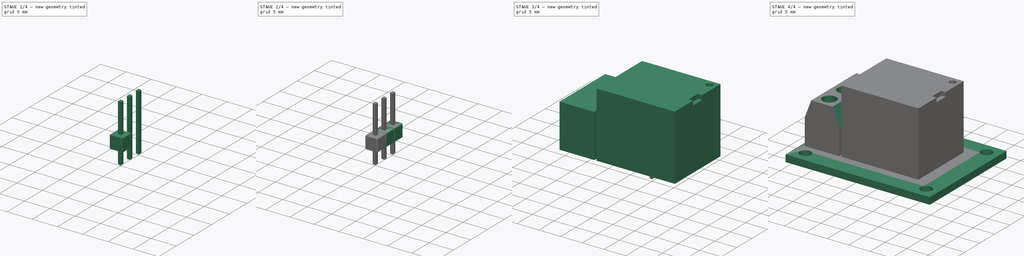
[diagram: build sequence overview — one tinted view per stage of 4, left to right]
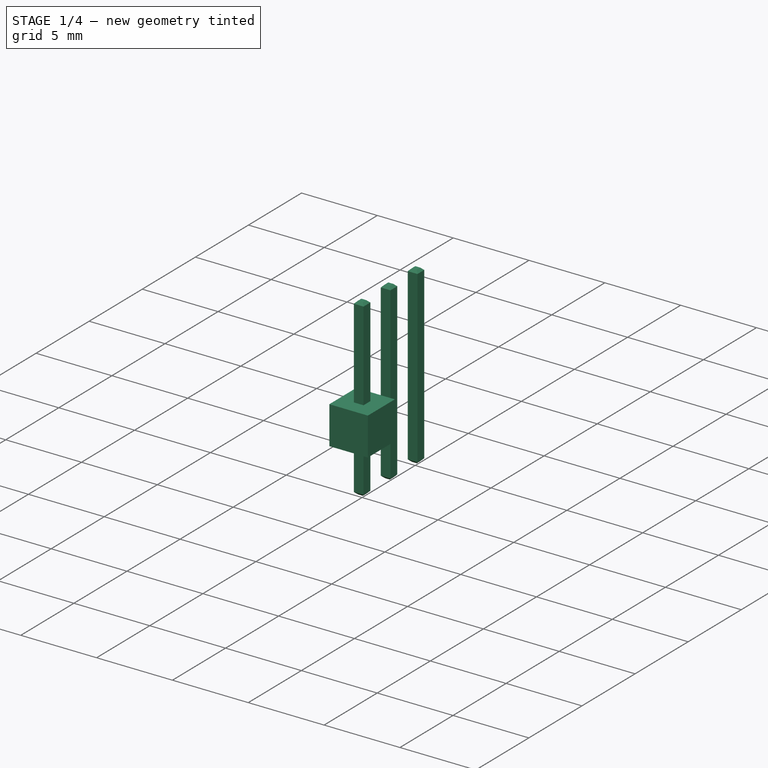
[diagram: stage 1 of 4 — iso view after this stage's code; geometry added in this stage tinted green]
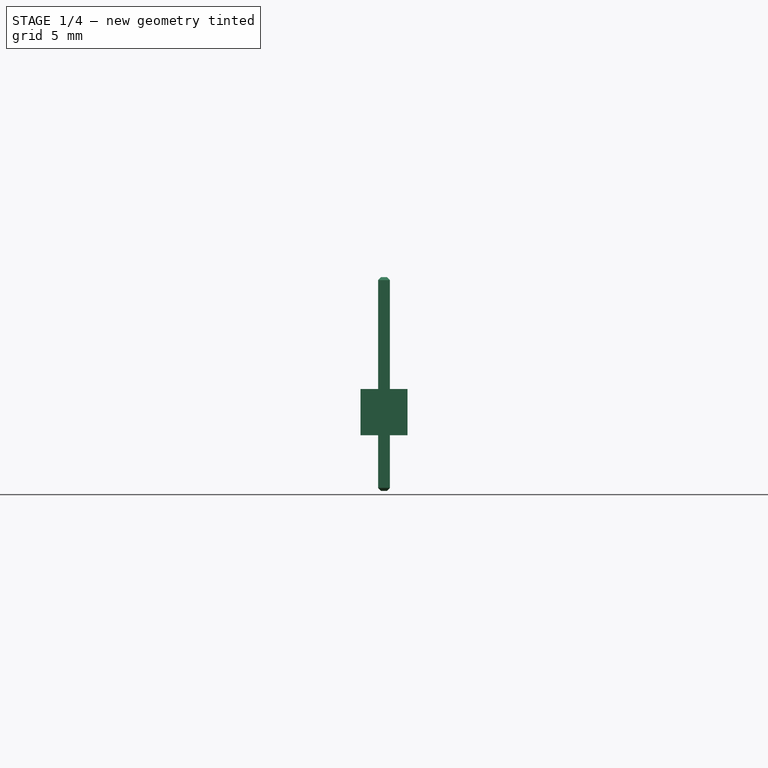
[diagram: stage 1 of 4 — front view after this stage's code; geometry added in this stage tinted green]
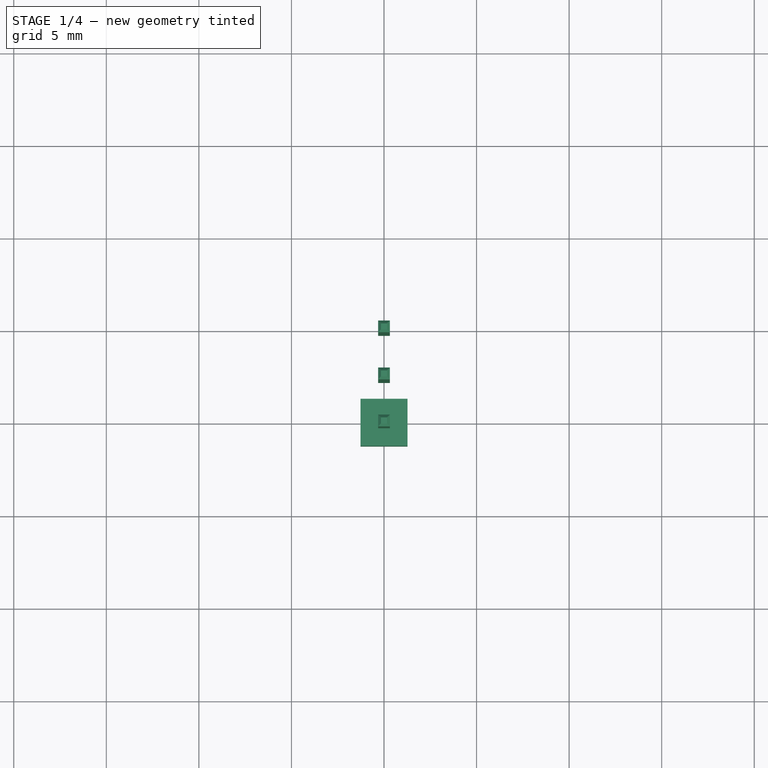
[diagram: stage 1 of 4 — top view after this stage's code; geometry added in this stage tinted green]
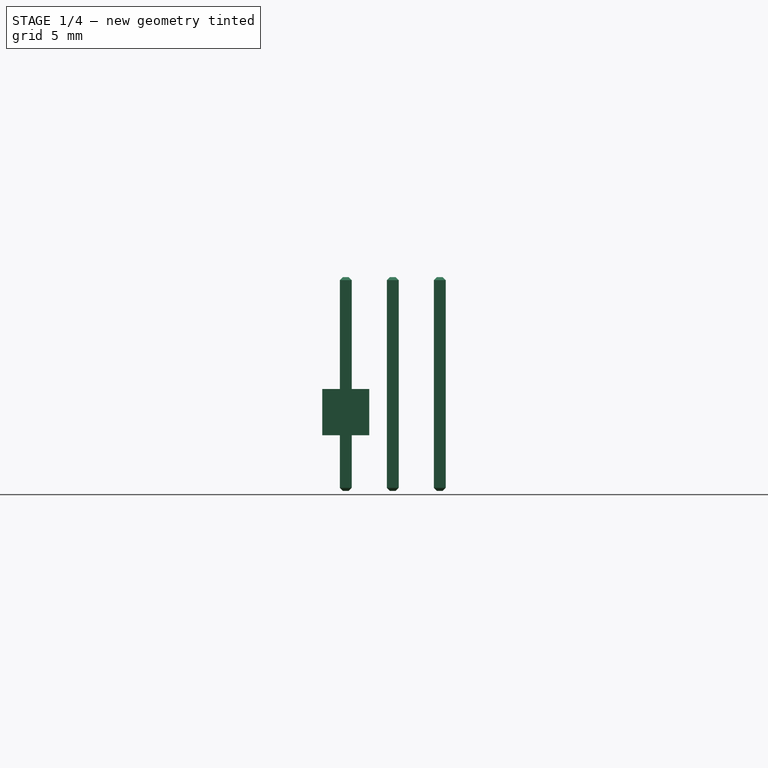
[diagram: stage 1 of 4 — right view after this stage's code; geometry added in this stage tinted green]
FCSTD DOCUMENT  (FreeCAD 0.18R4 (GitTag))
Label: HW-482
License: CreativeCommons Attribution-NonCommercial
LicenseURL: http://creativecommons.org/licenses/by-nc/4.0/
objects: Sketcher::SketchObject×9, PartDesign::Pad×5, PartDesign::Body×5, PartDesign::Pocket×4, PartDesign::Chamfer×3, PartDesign::ShapeBinder×2, Part::FeaturePython×2, App::Part×2
note: 39 computed .brp shape members not serialized (recipe doc carries the construction recipe); baked Part::Feature solids carry a one-line shape summary decoded from their .brp

FEATURE [PartDesign::Body] Body002  label="HW-482 Relais Block"
  Group = -> [CopyPad001,Sketch005,Pad002,Sketch006,Pocket003]
  Origin = -> Origin003
  Tip = -> Pocket003
FEATURE [Sketcher::SketchObject] Sketch207
  MapMode = 5
  Placement = pos=(0,0,0) rot=(1,0,0;1.5708rad)
  Support = -> [XZ_Plane050]
  sketch-geometry (4):
    g0: LineSegment StartX=-0.32 StartY=-3 StartZ=0 EndX=0.32 EndY=-3 EndZ=0
    g1: LineSegment StartX=0.32 StartY=-3 StartZ=0 EndX=0.32 EndY=8.54 EndZ=0
    g2: LineSegment StartX=0.32 StartY=8.54 StartZ=0 EndX=-0.32 EndY=8.54 EndZ=0
    g3: LineSegment StartX=-0.32 StartY=8.54 StartZ=0 EndX=-0.32 EndY=-3 EndZ=0
  constraints (11):
    c: Coincident(g0,g1)
    c: Coincident(g1,g2)
    c: Coincident(g2,g3)
    c: Coincident(g3,g0)
    c: Horizontal(g0)
    c: Vertical(g1)
    c: Vertical(g3)
    c: DistanceY(g-1,g1) = 8.54
    c: DistanceY(g0,g-1) = 3
    c: Symmetric(g2,g1,g-2)
    c: DistanceX(g2,g2) = 0.64
FEATURE [Sketcher::SketchObject] Sketch208
  MapMode = 5
  Support = -> [XY_Plane052]
  sketch-geometry (4):
    g0: LineSegment StartX=-1.27 StartY=-1.27 StartZ=0 EndX=1.27 EndY=-1.27 EndZ=0
    g1: LineSegment StartX=1.27 StartY=-1.27 StartZ=0 EndX=1.27 EndY=1.27 EndZ=0
    g2: LineSegment StartX=1.27 StartY=1.27 StartZ=0 EndX=-1.27 EndY=1.27 EndZ=0
    g3: LineSegment StartX=-1.27 StartY=1.27 StartZ=0 EndX=-1.27 EndY=-1.27 EndZ=0
  constraints (10):
    c: Coincident(g0,g1)
    c: Coincident(g1,g2)
    c: Coincident(g2,g3)
    c: Coincident(g3,g0)
    c: Horizontal(g0)
    c: Vertical(g3)
    c: Symmetric(g1,g2,g-2)
    c: Symmetric(g0,g1,g-1)
    c: Equal(g3,g2)
    c: DistanceX(g2,g2) = 2.54
FEATURE [PartDesign::Pad] Pad062
  Length = 0.32
  Length2 = 0.32
  Placement = pos=(0,0,0) rot=(1,0,0;1.5708rad)
  Profile = -> Sketch207
  Type = 4
FEATURE [PartDesign::Chamfer] Chamfer012
  Base = -> Pad062 [Face3,Face1]
  BaseFeature = -> Pad062
  Placement = pos=(0,0,0) rot=(1,0,0;1.5708rad)
  Size = 0.16
FEATURE [PartDesign::Body] Body034  label="Pin Header Pin001"
  Group = -> [Sketch207,Pad062,Chamfer012]
  Origin = -> Origin050
  Tip = -> Chamfer012
FEATURE [PartDesign::Pad] Pad063
  Length = 2.5
  Length2 = 100
  Profile = -> Sketch208
  Type = 0
FEATURE [Part::FeaturePython] Array001  # Draft array (typed FeaturePython)
  Angle = 360
  ArrayType = 0
  Axis = (0,0,1)
  Base = -> Body034
  Center = (0,0,0)
  Fuse = false
  IntervalAxis = (0,0,0)
  IntervalX = (1,0,0)
  IntervalY = (0,2.54,0)
  IntervalZ = (0,0,1)
  NumberPolar = 1
  NumberX = 1
  NumberY = 3
  NumberZ = 1
FEATURE [App::Part] Part010  label="Pin Header001"
  Group = -> [Body035,Body034,Array,Array001]
  Origin = -> Origin051
  Placement = pos=(14,-0.08,1.6) rot=(0,0,1;0rad)
FEATURE [App::Part] Part  label="HW-482 Relais"
  Group = -> [Body,Body001,Body002,Part010]
  Origin = -> Origin
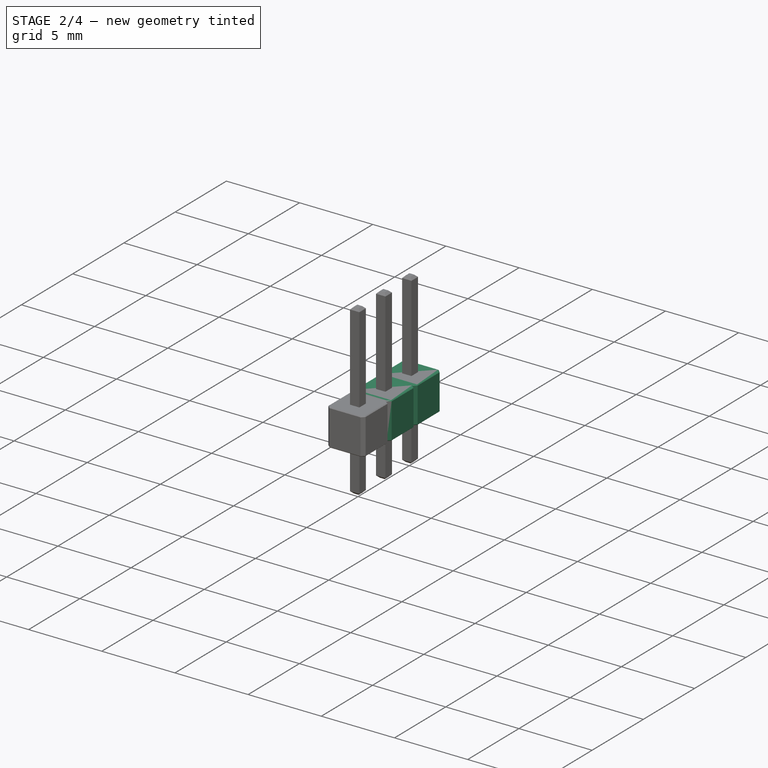
[diagram: stage 2 of 4 — iso view after this stage's code; geometry added in this stage tinted green]
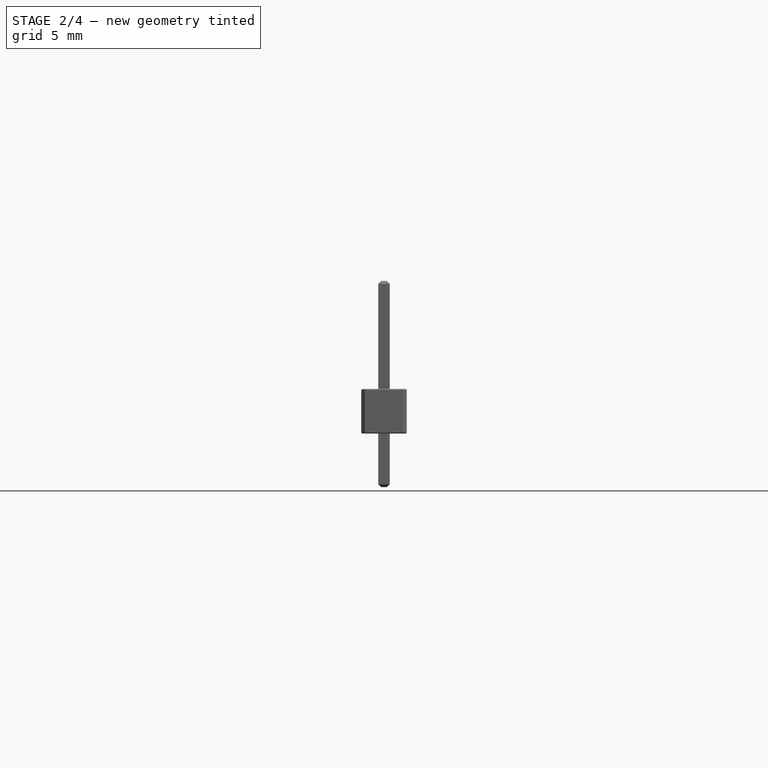
[diagram: stage 2 of 4 — front view after this stage's code; geometry added in this stage tinted green]
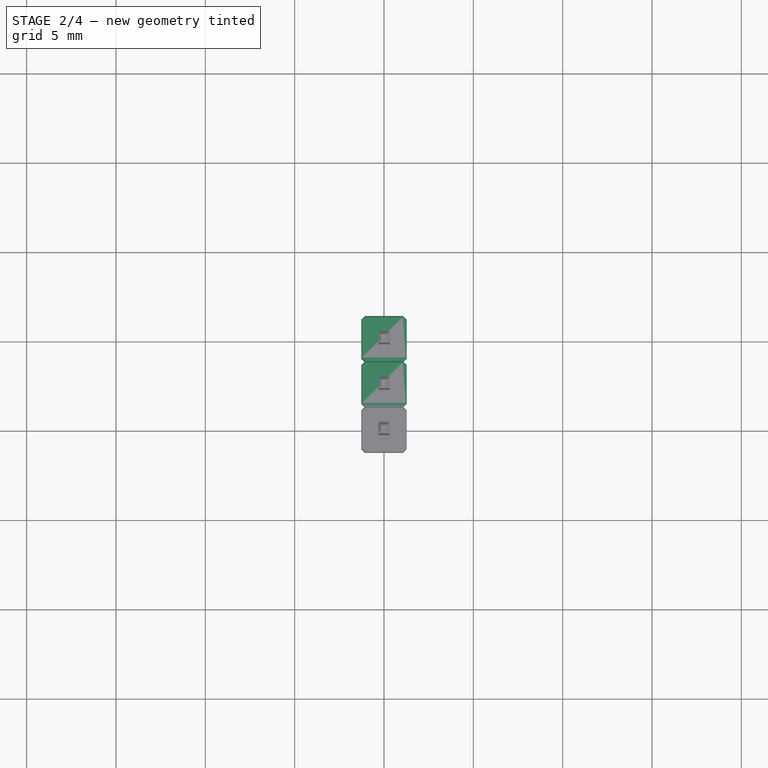
[diagram: stage 2 of 4 — top view after this stage's code; geometry added in this stage tinted green]
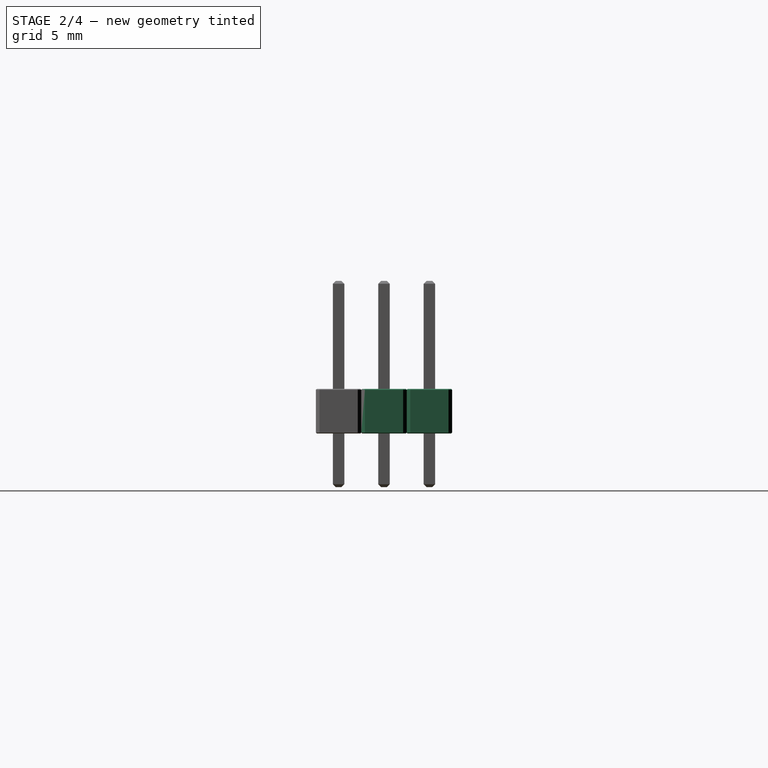
[diagram: stage 2 of 4 — right view after this stage's code; geometry added in this stage tinted green]
FEATURE [PartDesign::Chamfer] Chamfer014
  Base = -> Pad063 [Edge2,Edge1,Edge5,Edge8]
  BaseFeature = -> Pad063
  Size = 0.2
FEATURE [PartDesign::Chamfer] Chamfer013
  Base = -> Chamfer014 [Face5,Face2]
  BaseFeature = -> Chamfer014
  Size = 0.05
FEATURE [PartDesign::Body] Body035  label="Pin Header Block001"
  Group = -> [Sketch208,Pad063,Chamfer014,Chamfer013]
  Origin = -> Origin052
  Tip = -> Chamfer013
FEATURE [Part::FeaturePython] Array  # Draft array (typed FeaturePython)
  Angle = 360
  ArrayType = 0
  Axis = (0,0,1)
  Base = -> Body035
  Center = (0,0,0)
  Fuse = false
  IntervalAxis = (0,0,0)
  IntervalX = (1,0,0)
  IntervalY = (0,2.54,0)
  IntervalZ = (0,0,1)
  NumberPolar = 1
  NumberX = 1
  NumberY = 3
  NumberZ = 1
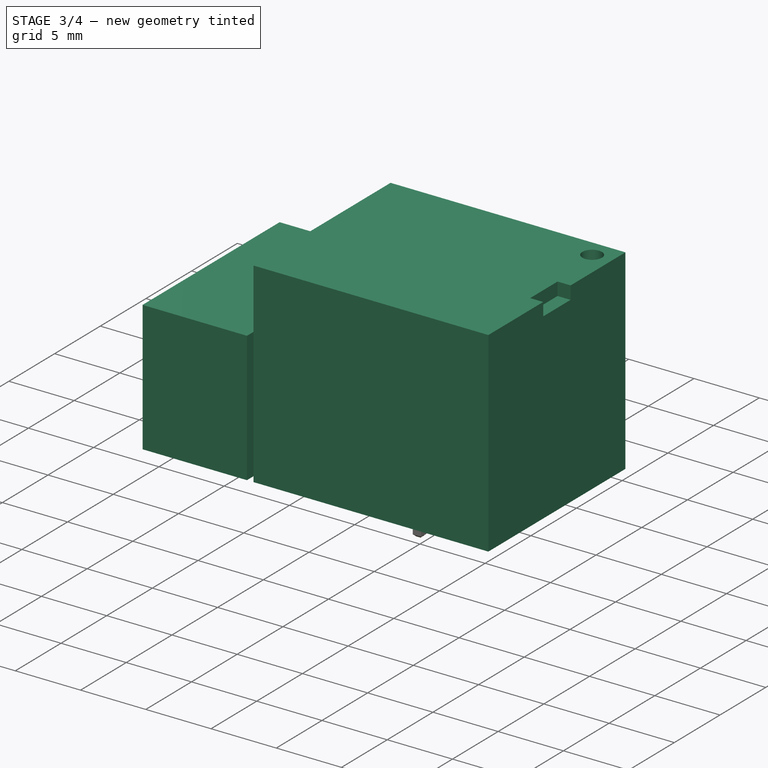
[diagram: stage 3 of 4 — iso view after this stage's code; geometry added in this stage tinted green]
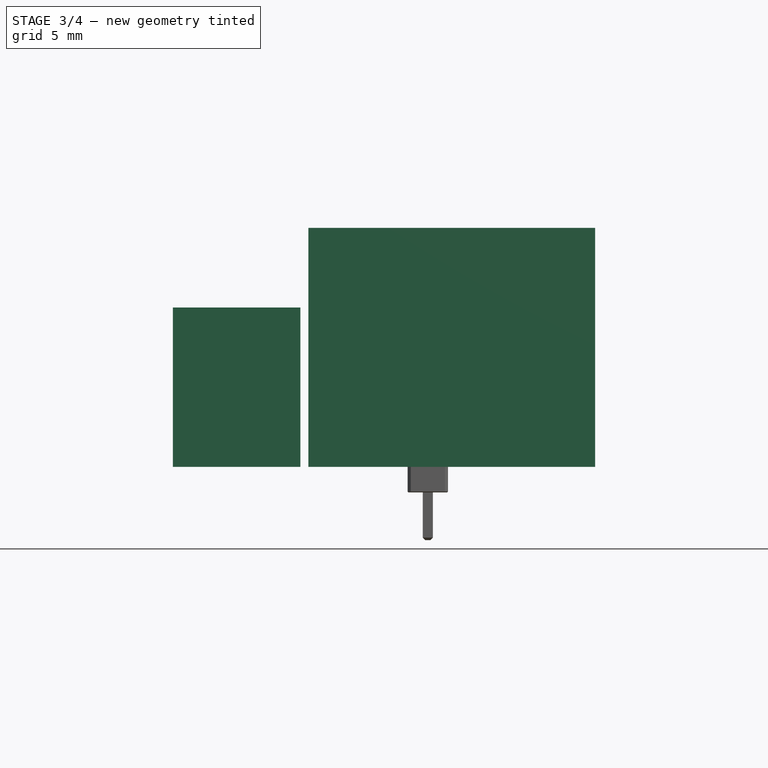
[diagram: stage 3 of 4 — front view after this stage's code; geometry added in this stage tinted green]
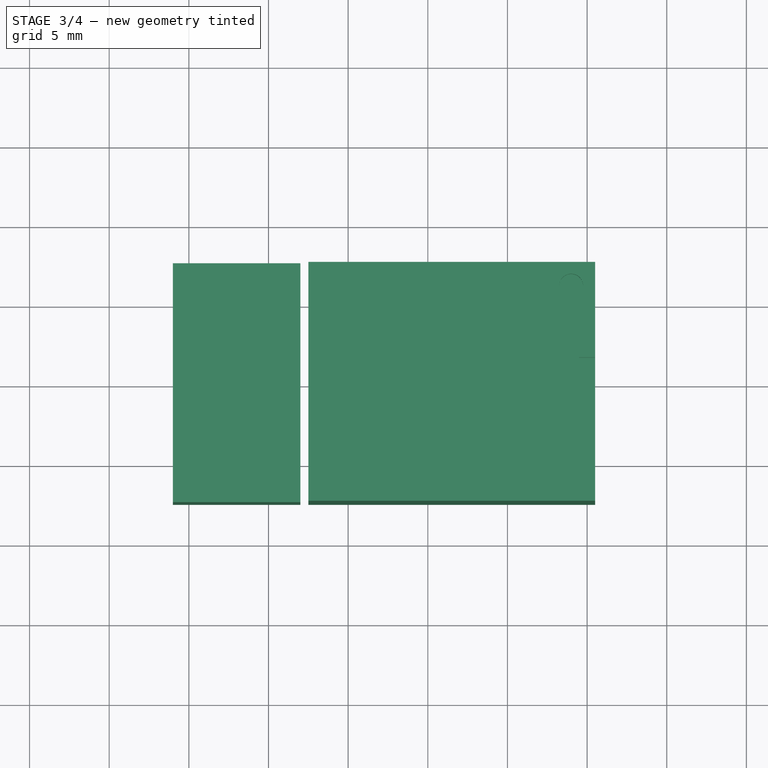
[diagram: stage 3 of 4 — top view after this stage's code; geometry added in this stage tinted green]
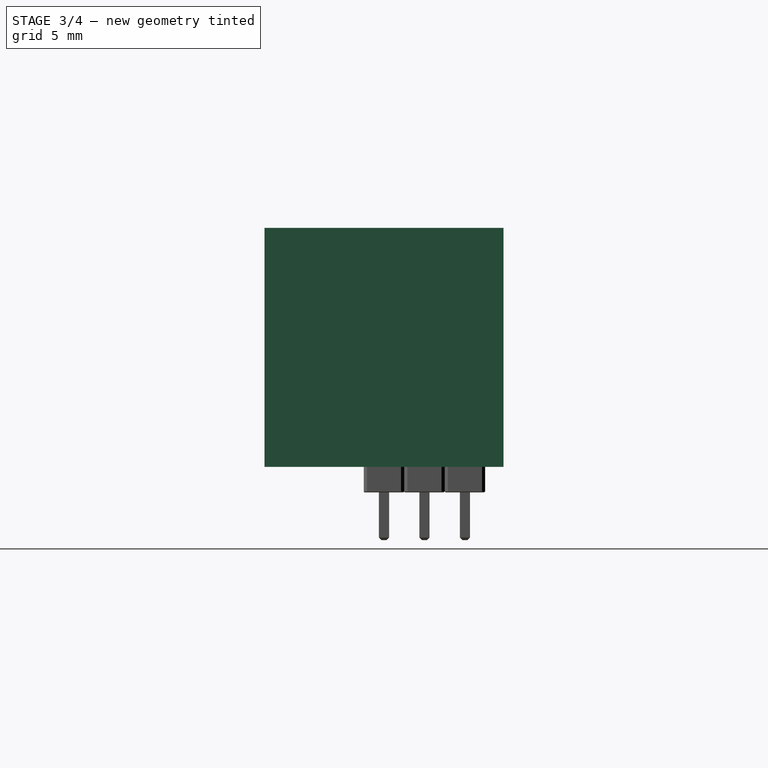
[diagram: stage 3 of 4 — right view after this stage's code; geometry added in this stage tinted green]
FEATURE [PartDesign::Body] Body  label="HW-482 Relais PCB"
  Group = -> [Sketch,Pad]
  Origin = -> Origin001
  Tip = -> Pad
FEATURE [PartDesign::ShapeBinder] CopyPad
  Placement = pos=(0,0,1.6) rot=(0,0,1;0rad)
  TraceSupport = false
FEATURE [Sketcher::SketchObject] Sketch001
  MapMode = 5
  Placement = pos=(0,0,1.6) rot=(0,0,1;0rad)
  Support = -> [CopyPad]
  sketch-geometry (4):
    g0: LineSegment StartX=-16 StartY=-7.5 StartZ=0 EndX=-8 EndY=-7.5 EndZ=0
    g1: LineSegment StartX=-8 StartY=-7.5 StartZ=0 EndX=-8 EndY=7.5 EndZ=0
    g2: LineSegment StartX=-8 StartY=7.5 StartZ=0 EndX=-16 EndY=7.5 EndZ=0
    g3: LineSegment StartX=-16 StartY=7.5 StartZ=0 EndX=-16 EndY=-7.5 EndZ=0
  constraints (11):
    c: Coincident(g0,g1)
    c: Coincident(g1,g2)
    c: Coincident(g2,g3)
    c: Coincident(g3,g0)
    c: Horizontal(g0)
    c: Horizontal(g2)
    c: Vertical(g1)
    c: DistanceX(g2,g2) = 8
    c: DistanceY(g3,g3) = 15
    c: Symmetric(g2,g0,g-1)
    c: DistanceX(g2,g-1) = 16
FEATURE [PartDesign::Pad] Pad001
  Length = 10
  Length2 = 100
  Placement = pos=(0,0,1.6) rot=(0,0,1;0rad)
  Profile = -> Sketch001
  Type = 0
FEATURE [PartDesign::Body] Body001  label="HW-482 Terminal Block"
  Group = -> [CopyPad,Sketch001,Pad001,Sketch002,Pocket,Sketch003,Pocket001,Sketch004,Pocket002]
  Origin = -> Origin002
  Tip = -> Pocket002
FEATURE [PartDesign::ShapeBinder] CopyPad001
  Placement = pos=(0,0,1.6) rot=(0,0,1;0rad)
  TraceSupport = false
FEATURE [Sketcher::SketchObject] Sketch005
  MapMode = 5
  Placement = pos=(0,0,1.6) rot=(0,0,1;0rad)
  Support = -> [CopyPad001]
  sketch-geometry (4):
    g0: LineSegment StartX=-7.5 StartY=7.5 StartZ=0 EndX=10.5 EndY=7.5 EndZ=0
    g1: LineSegment StartX=10.5 StartY=7.5 StartZ=0 EndX=10.5 EndY=-7.5 EndZ=0
    g2: LineSegment StartX=10.5 StartY=-7.5 StartZ=0 EndX=-7.5 EndY=-7.5 EndZ=0
    g3: LineSegment StartX=-7.5 StartY=-7.5 StartZ=0 EndX=-7.5 EndY=7.5 EndZ=0
  constraints (11):
    c: Coincident(g0,g1)
    c: Coincident(g1,g2)
    c: Coincident(g2,g3)
    c: Coincident(g3,g0)
    c: Horizontal(g0)
    c: Horizontal(g2)
    c: Vertical(g3)
    c: DistanceY(g1,g1) = 15
    c: Symmetric(g0,g1,g-1)
    c: DistanceX(g0,g-1) = 7.5
    c: DistanceX(g0,g0) = 18
FEATURE [PartDesign::Pad] Pad002
  Length = 15
  Length2 = 100
  Placement = pos=(0,0,1.6) rot=(0,0,1;0rad)
  Profile = -> Sketch005
  Type = 0
FEATURE [Sketcher::SketchObject] Sketch006
  ExternalGeometry = -> [Pad002]
  MapMode = 5
  Placement = pos=(0,0,16.6) rot=(0,0,1;0rad)
  Support = -> [Pad002]
  sketch-geometry (9):
    g0: Circle CenterX=9 CenterY=6 CenterZ=0 NormalX=0 NormalY=0 NormalZ=1 AngleXU=0 Radius=0.75
    g1: LineSegment StartX=9.5 StartY=-1.5 StartZ=0 EndX=10.5 EndY=-1.5 EndZ=0
    g2: LineSegment StartX=10.5 StartY=-1.5 StartZ=0 EndX=10.5 EndY=1.5 EndZ=0
    g3: LineSegment StartX=10.5 StartY=1.5 StartZ=0 EndX=9.5 EndY=1.5 EndZ=0
    g4: LineSegment StartX=9.5 StartY=1.5 StartZ=0 EndX=9.5 EndY=-1.5 EndZ=0
    g5: LineSegment [constr] StartX=10.5 StartY=7.5 StartZ=0 EndX=9 EndY=7.5 EndZ=0
    g6: LineSegment [constr] StartX=9 StartY=7.5 StartZ=0 EndX=9 EndY=6 EndZ=0
    g7: LineSegment [constr] StartX=9 StartY=6 StartZ=0 EndX=10.5 EndY=6 EndZ=0
    g8: LineSegment [constr] StartX=10.5 StartY=6 StartZ=0 EndX=10.5 EndY=7.5 EndZ=0
  constraints (24):
    c: Coincident(g1,g2)
    c: Coincident(g2,g3)
    c: Coincident(g3,g4)
    c: Coincident(g4,g1)
    c: Horizontal(g1)
    c: Horizontal(g3)
    c: Vertical(g4)
    c: DistanceY(g4,g4) = 3
    c: DistanceX(g3,g3) = 1
    c: Symmetric(g2,g1,g-1)
    c: DistanceX(g-1,g2) = 10.5
    c: Coincident(g5,g6)
    c: Coincident(g6,g7)
    c: Coincident(g7,g8)
    c: Coincident(g8,g5)
    c: Horizontal(g5)
    c: Horizontal(g7)
    c: Vertical(g6)
    c: Vertical(g8)
    c: Coincident(g5,g-3)
    c: Coincident(g6,g0)
    c: Equal(g7,g6)
    c: DistanceX(g5,g5) = 1.5
    c: Radius(g0) = 0.75
FEATURE [PartDesign::Pocket] Pocket003
  BaseFeature = -> Pad002
  Length = 1
  Length2 = 100
  Placement = pos=(0,0,1.6) rot=(0,0,1;0rad)
  Profile = -> Sketch006
  Type = 0
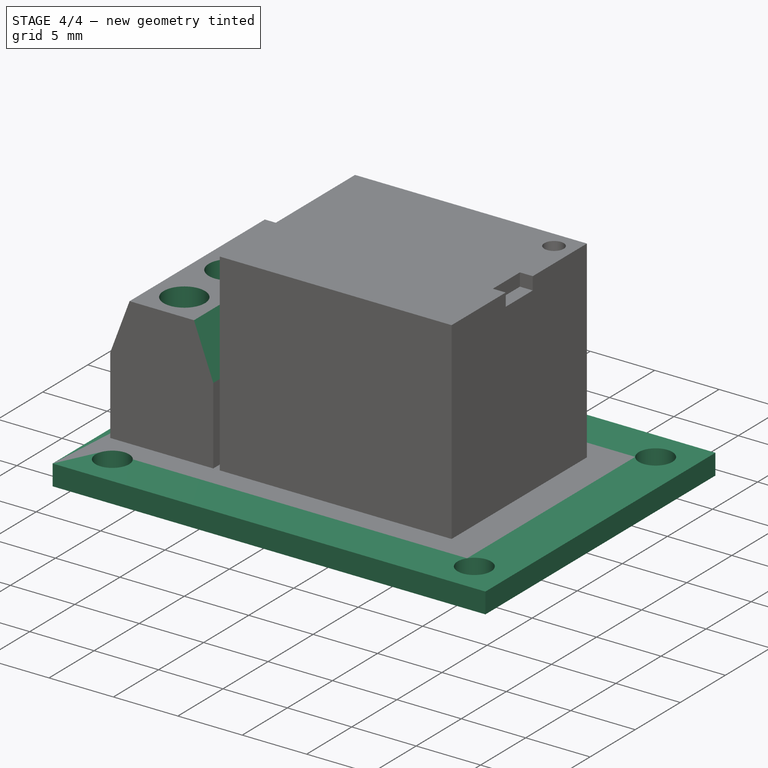
[diagram: stage 4 of 4 — iso view after this stage's code; geometry added in this stage tinted green]
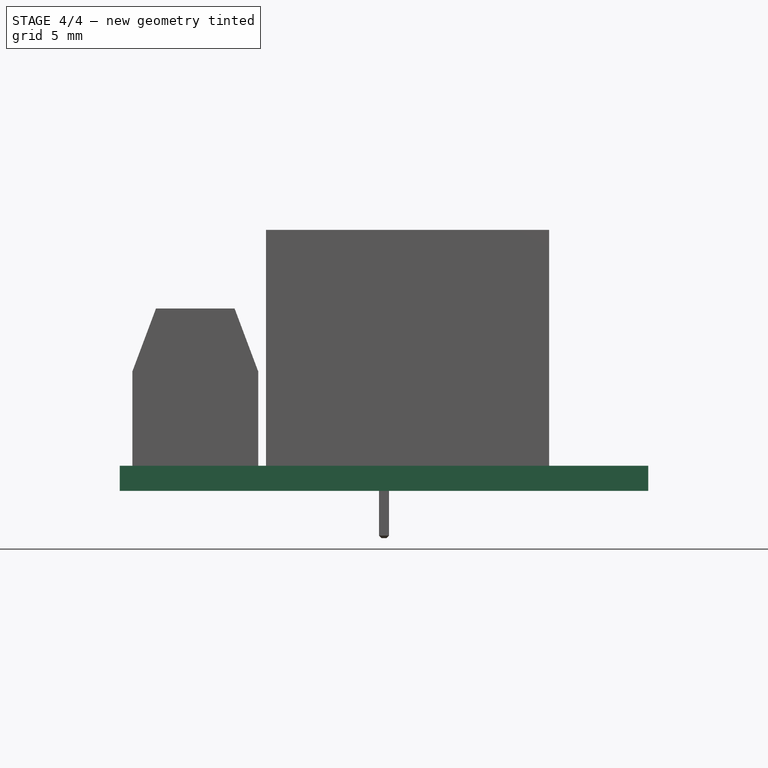
[diagram: stage 4 of 4 — front view after this stage's code; geometry added in this stage tinted green]
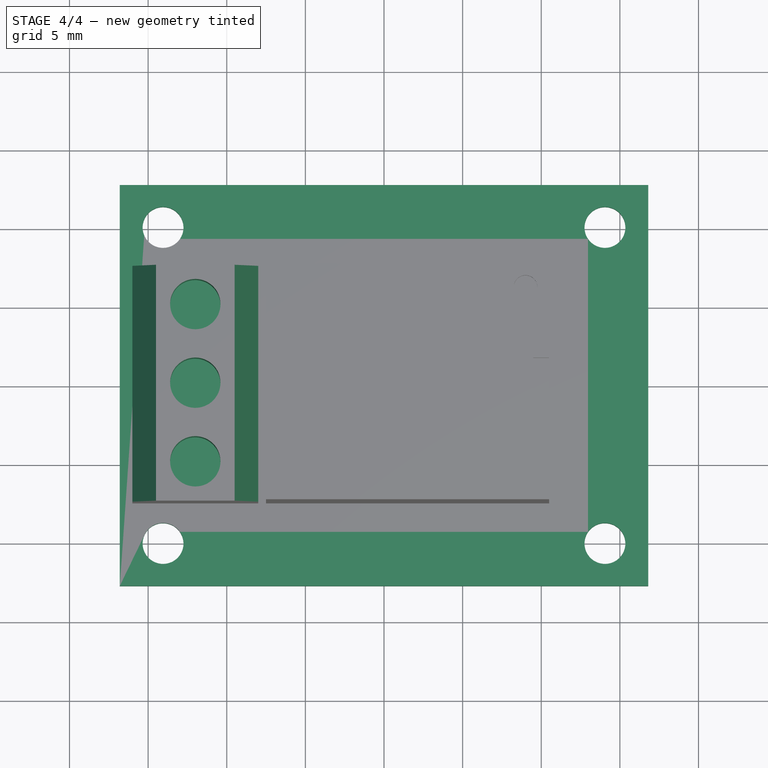
[diagram: stage 4 of 4 — top view after this stage's code; geometry added in this stage tinted green]
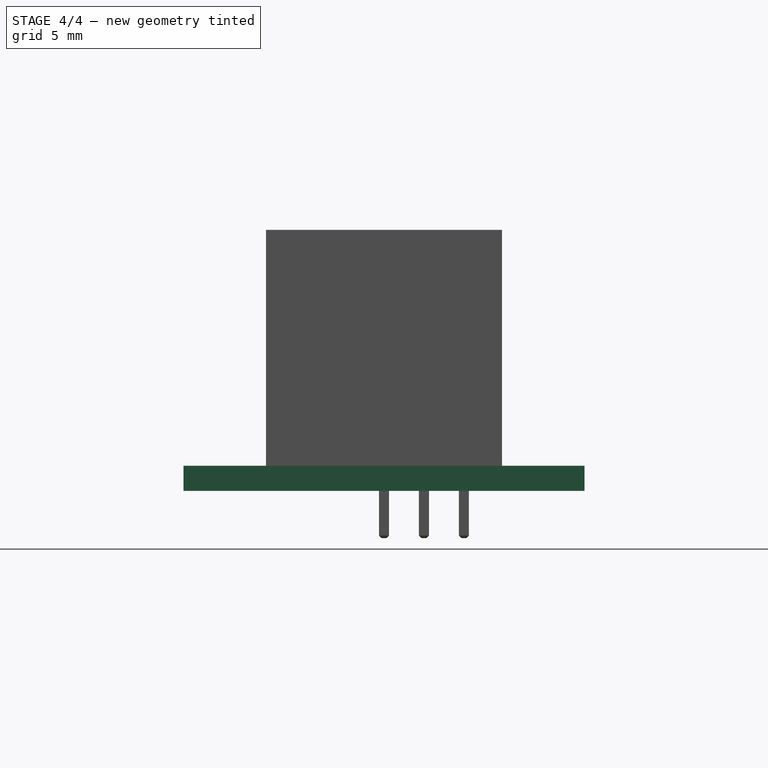
[diagram: stage 4 of 4 — right view after this stage's code; geometry added in this stage tinted green]
FEATURE [Sketcher::SketchObject] Sketch
  MapMode = 5
  Support = -> [XY_Plane001]
  sketch-geometry (8):
    g0: LineSegment StartX=-16.8 StartY=12.75 StartZ=0 EndX=16.8 EndY=12.75 EndZ=0
    g1: LineSegment StartX=16.8 StartY=12.75 StartZ=0 EndX=16.8 EndY=-12.75 EndZ=0
    g2: LineSegment StartX=16.8 StartY=-12.75 StartZ=0 EndX=-16.8 EndY=-12.75 EndZ=0
    g3: LineSegment StartX=-16.8 StartY=-12.75 StartZ=0 EndX=-16.8 EndY=12.75 EndZ=0
    g4: Circle CenterX=-14.05 CenterY=10.05 CenterZ=0 NormalX=0 NormalY=0 NormalZ=1 AngleXU=0 Radius=1.3
    g5: Circle CenterX=14.05 CenterY=10.05 CenterZ=0 NormalX=0 NormalY=0 NormalZ=1 AngleXU=0 Radius=1.3
    g6: Circle CenterX=14.05 CenterY=-10.05 CenterZ=0 NormalX=0 NormalY=0 NormalZ=1 AngleXU=0 Radius=1.3
    g7: Circle CenterX=-14.05 CenterY=-10.05 CenterZ=0 NormalX=0 NormalY=0 NormalZ=1 AngleXU=0 Radius=1.3
  constraints (19):
    c: Coincident(g0,g1)
    c: Coincident(g1,g2)
    c: Coincident(g2,g3)
    c: Coincident(g3,g0)
    c: Horizontal(g2)
    c: Vertical(g3)
    c: DistanceX(g0,g0) = 33.6
    c: DistanceY(g1,g1) = 25.5
    c: Symmetric(g0,g0,g-2)
    c: Symmetric(g0,g1,g-1)
    c: Equal(g4,g5)
    c: Equal(g5,g6)
    c: Equal(g6,g7)
    c: Radius(g7) = 1.3
    c: Symmetric(g4,g5,g-2)
    c: Symmetric(g5,g6,g-1)
    c: Symmetric(g7,g6,g-2)
    c: DistanceX(g4,g5) = 28.1
    c: DistanceY(g6,g5) = 20.1
FEATURE [PartDesign::Pad] Pad
  Length = 1.6
  Length2 = 100
  Profile = -> Sketch
  Type = 0
FEATURE [Sketcher::SketchObject] Sketch002
  ExternalGeometry = -> [Pad001]
  MapMode = 5
  Placement = pos=(0,-7.5,1.6) rot=(1,0,0;1.5708rad)
  Support = -> [Pad001]
  sketch-geometry (6):
    g0: LineSegment StartX=-16 StartY=10 StartZ=0 EndX=-16 EndY=6 EndZ=0
    g1: LineSegment StartX=-16 StartY=6 StartZ=0 EndX=-14.5 EndY=10 EndZ=0
    g2: LineSegment StartX=-14.5 StartY=10 StartZ=0 EndX=-16 EndY=10 EndZ=0
    g3: LineSegment StartX=-8 StartY=10 StartZ=0 EndX=-9.5 EndY=10 EndZ=0
    g4: LineSegment StartX=-9.5 StartY=10 StartZ=0 EndX=-8 EndY=6 EndZ=0
    g5: LineSegment StartX=-8 StartY=6 StartZ=0 EndX=-8 EndY=10 EndZ=0
  constraints (16):
    c: Vertical(g0)
    c: Coincident(g0,g1)
    c: Coincident(g1,g2)
    c: Coincident(g2,g0)
    c: Horizontal(g3)
    c: Coincident(g3,g4)
    c: Coincident(g4,g5)
    c: Coincident(g5,g3)
    c: Vertical(g5)
    c: Horizontal(g2)
    c: Equal(g2,g3)
    c: Equal(g0,g5)
    c: Coincident(g0,g-3)
    c: Coincident(g3,g-3)
    c: DistanceY(g0,g0) = 4
    c: DistanceX(g1,g3) = 5
FEATURE [PartDesign::Pocket] Pocket
  BaseFeature = -> Pad001
  Length = 16
  Length2 = 100
  Placement = pos=(0,0,1.6) rot=(0,0,1;0rad)
  Profile = -> Sketch002
  Type = 0
FEATURE [Sketcher::SketchObject] Sketch003
  ExternalGeometry = -> [Pocket]
  MapMode = 5
  Placement = pos=(0,0,11.6) rot=(0,0,1;0rad)
  Support = -> [Pocket]
  sketch-geometry (5):
    g0: Circle CenterX=-12 CenterY=5 CenterZ=0 NormalX=0 NormalY=0 NormalZ=1 AngleXU=0 Radius=1.6
    g1: Circle CenterX=-12 CenterY=0 CenterZ=0 NormalX=0 NormalY=0 NormalZ=1 AngleXU=0 Radius=1.6
    g2: Circle CenterX=-12 CenterY=-5 CenterZ=0 NormalX=0 NormalY=0 NormalZ=1 AngleXU=0 Radius=1.6
    g3: LineSegment [constr] StartX=-14.5 StartY=7.5 StartZ=0 EndX=-12 EndY=5 EndZ=0
    g4: LineSegment [constr] StartX=-9.5 StartY=7.5 StartZ=0 EndX=-12 EndY=5 EndZ=0
  constraints (12):
    c: PointOnObject(g1,g-1)
    c: Symmetric(g2,g0,g1)
    c: Equal(g2,g1)
    c: Equal(g1,g0)
    c: Vertical(g2,g0)
    c: Radius(g1) = 1.6
    c: DistanceY(g2,g0) = 10
    c: Coincident(g3,g-3)
    c: Coincident(g3,g0)
    c: Coincident(g4,g0)
    c: Coincident(g4,g-3)
    c: Equal(g3,g4)
FEATURE [PartDesign::Pocket] Pocket001
  BaseFeature = -> Pocket
  Length = 5
  Length2 = 100
  Placement = pos=(0,0,1.6) rot=(0,0,1;0rad)
  Profile = -> Sketch003
  Type = 0
FEATURE [Sketcher::SketchObject] Sketch004
  MapMode = 5
  Placement = pos=(-16,0,1.6) rot=(0.57735,-0.57735,-0.57735;2.0944rad)
  Support = -> [Pocket001]
  sketch-geometry (12):
    g0: LineSegment StartX=-7 StartY=0.5 StartZ=0 EndX=-3 EndY=0.5 EndZ=0
    g1: LineSegment StartX=-3 StartY=0.5 StartZ=0 EndX=-3 EndY=5.5 EndZ=0
    g2: LineSegment StartX=-3 StartY=5.5 StartZ=0 EndX=-7 EndY=5.5 EndZ=0
    g3: LineSegment StartX=-7 StartY=5.5 StartZ=0 EndX=-7 EndY=0.5 EndZ=0
    g4: LineSegment StartX=-2 StartY=0.5 StartZ=0 EndX=2 EndY=0.5 EndZ=0
    g5: LineSegment StartX=2 StartY=0.5 StartZ=0 EndX=2 EndY=5.5 EndZ=0
    g6: LineSegment StartX=2 StartY=5.5 StartZ=0 EndX=-2 EndY=5.5 EndZ=0
    g7: LineSegment StartX=-2 StartY=5.5 StartZ=0 EndX=-2 EndY=0.5 EndZ=0
    g8: LineSegment StartX=3 StartY=0.5 StartZ=0 EndX=7 EndY=0.5 EndZ=0
    g9: LineSegment StartX=7 StartY=0.5 StartZ=0 EndX=7 EndY=5.5 EndZ=0
    g10: LineSegment StartX=7 StartY=5.5 StartZ=0 EndX=3 EndY=5.5 EndZ=0
    g11: LineSegment StartX=3 StartY=5.5 StartZ=0 EndX=3 EndY=0.5 EndZ=0
  constraints (34):
    c: Coincident(g0,g1)
    c: Coincident(g1,g2)
    c: Coincident(g2,g3)
    c: Coincident(g3,g0)
    c: Horizontal(g0)
    c: Horizontal(g2)
    c: Vertical(g1)
    c: Vertical(g3)
    c: Coincident(g4,g5)
    c: Coincident(g5,g6)
    c: Coincident(g6,g7)
    c: Coincident(g7,g4)
    c: Horizontal(g4)
    c: Vertical(g5)
    c: Vertical(g7)
    c: Coincident(g8,g9)
    c: Coincident(g9,g10)
    c: Coincident(g10,g11)
    c: Coincident(g11,g8)
    c: Horizontal(g8)
    c: Horizontal(g10)
    c: Vertical(g9)
    c: Vertical(g11)
    c: Equal(g10,g6)
    c: Equal(g6,g2)
    c: Equal(g1,g7)
    c: Equal(g7,g11)
    c: Horizontal(g1,g6)
    c: Symmetric(g6,g5,g-2)
    c: Symmetric(g1,g10,g-2)
    c: DistanceX(g6,g6) = 4
    c: DistanceX(g2,g10) = 10
    c: DistanceY(g3,g3) = 5
    c: DistanceY(g-1,g4) = 0.5
FEATURE [PartDesign::Pocket] Pocket002
  BaseFeature = -> Pocket001
  Length = 6
  Length2 = 100
  Placement = pos=(0,0,1.6) rot=(0,0,1;0rad)
  Profile = -> Sketch004
  Type = 0
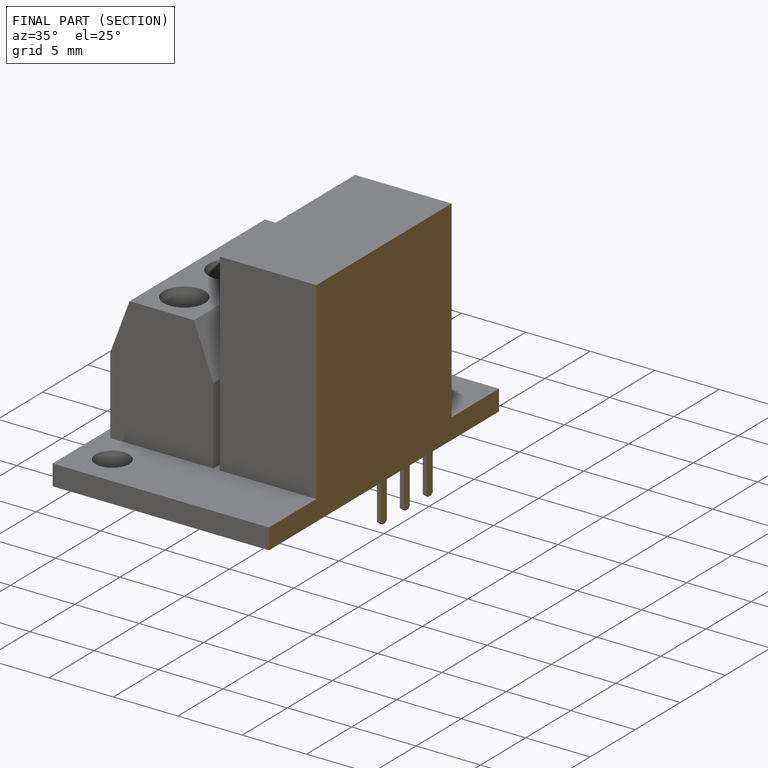
[diagram: finished part — half-section view (interior)]
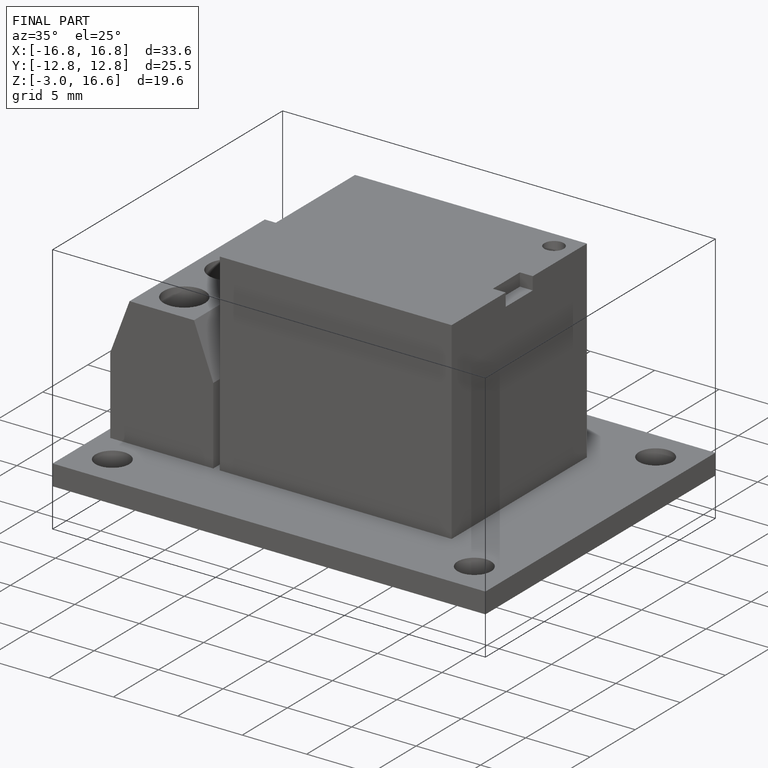
[diagram: finished part — iso view with bounding-box wireframe]
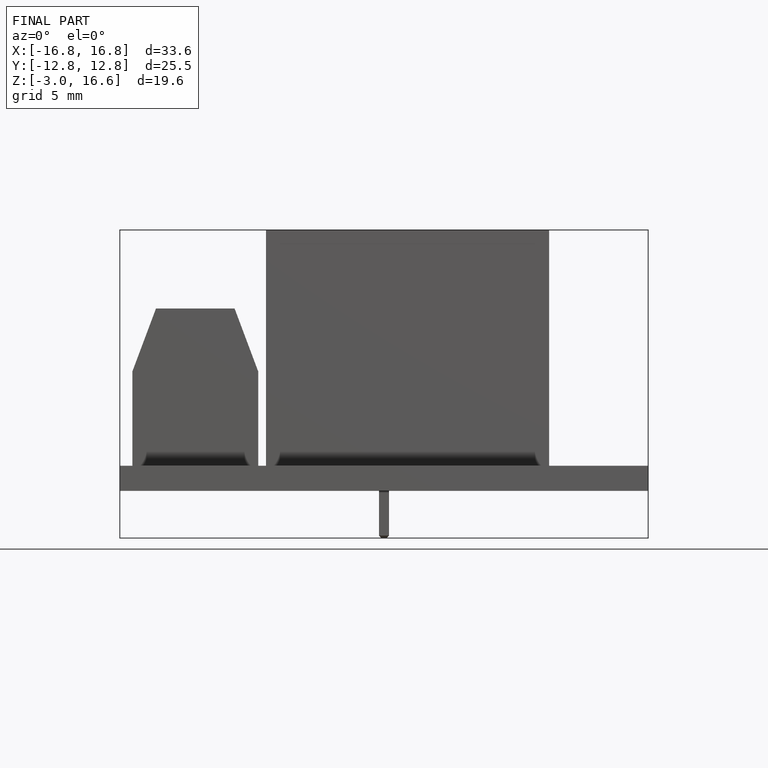
[diagram: finished part — front view with bounding-box wireframe]
